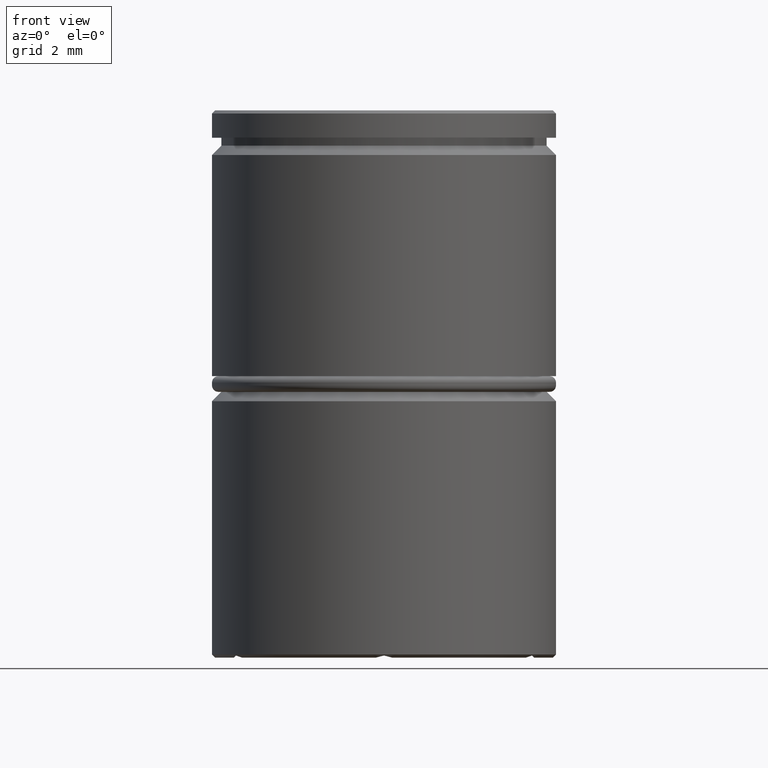
[diagram: clean part render]
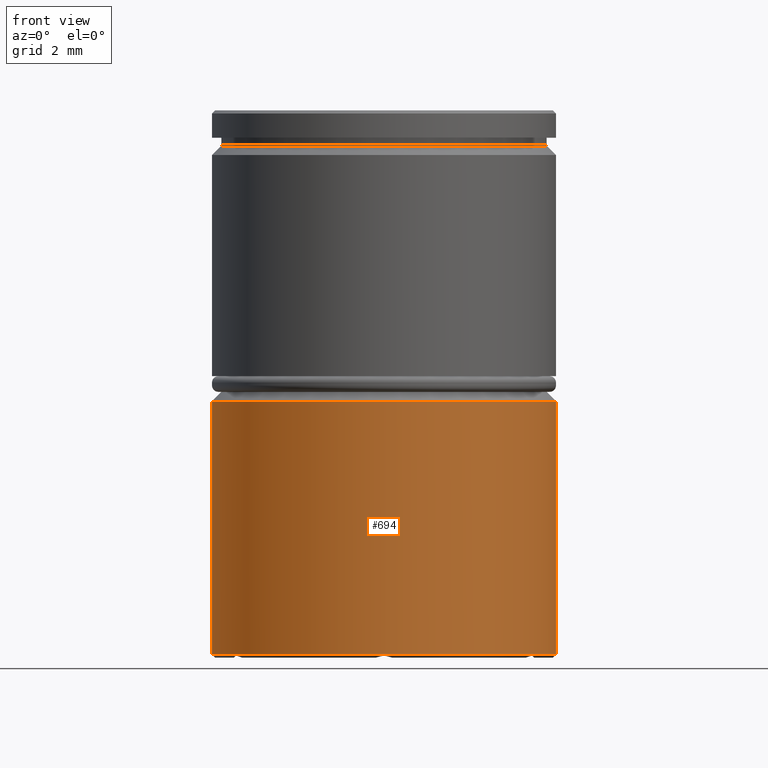
[diagram: same view with one face highlighted and labeled with its STEP entity id]
A machine part, front view. The second image highlights one B-rep face of the part: STEP entity #694.
In plain terms, the highlighted cylindrical surface (partial cylindrical patch) has radius 5.5 mm, axis along (-0, -0, 1).
Its self-contained STEP definition (entity closure, byte-faithful):
#65 = FACE_OUTER_BOUND ( 'NONE', #615, .T. ) ;
#75 = DIRECTION ( 'NONE',  ( 1.000000000000000000, 0.000000000000000000, 0.000000000000000000 ) ) ;
#216 = EDGE_CURVE ( 'NONE', #236, #891, #1212, .T. ) ;
#236 = VERTEX_POINT ( 'NONE', #1220 ) ;
#260 = CARTESIAN_POINT ( 'NONE',  ( -5.500000000000000000, 6.735557395310442023E-16, 0.000000000000000000 ) ) ;
#262 = CARTESIAN_POINT ( 'NONE',  ( -5.500000000000000000, 6.735557395310442023E-16, -9.299999999999998934 ) ) ;
#280 = VECTOR ( 'NONE', #1261, 1000.000000000000000 ) ;
#288 = CYLINDRICAL_SURFACE ( 'NONE', #418, 5.500000000000000000 ) ;
#298 = VECTOR ( 'NONE', #688, 1000.000000000000000 ) ;
#305 = CIRCLE ( 'NONE', #794, 5.500000000000000000 ) ;
#312 = DIRECTION ( 'NONE',  ( -1.000000000000000000, 0.000000000000000000, 0.000000000000000000 ) ) ;
#418 = AXIS2_PLACEMENT_3D ( 'NONE', #499, #604, #712 ) ;
#451 = CARTESIAN_POINT ( 'NONE',  ( 5.500000000000000000, 0.000000000000000000, 0.000000000000000000 ) ) ;
#499 = CARTESIAN_POINT ( 'NONE',  ( 0.000000000000000000, 0.000000000000000000, 0.000000000000000000 ) ) ;
#542 = CARTESIAN_POINT ( 'NONE',  ( 0.000000000000000000, 0.000000000000000000, -17.40000000000000568 ) ) ;
#555 = ORIENTED_EDGE ( 'NONE', *, *, #737, .T. ) ;
#604 = DIRECTION ( 'NONE',  ( -0.000000000000000000, -0.000000000000000000, 1.000000000000000000 ) ) ;
#615 = EDGE_LOOP ( 'NONE', ( #855, #555, #805, #1008 ) ) ;
#634 = AXIS2_PLACEMENT_3D ( 'NONE', #542, #1274, #312 ) ;
#688 = DIRECTION ( 'NONE',  ( -0.000000000000000000, -0.000000000000000000, 1.000000000000000000 ) ) ;
#694 = ADVANCED_FACE ( 'NONE', ( #65 ), #288, .T. ) ;
#712 = DIRECTION ( 'NONE',  ( 1.000000000000000000, 0.000000000000000000, 0.000000000000000000 ) ) ;
#737 = EDGE_CURVE ( 'NONE', #236, #1073, #1232, .T. ) ;
#753 = CARTESIAN_POINT ( 'NONE',  ( 5.500000000000000000, 0.000000000000000000, -17.40000000000000568 ) ) ;
#794 = AXIS2_PLACEMENT_3D ( 'NONE', #812, #930, #75 ) ;
#805 = ORIENTED_EDGE ( 'NONE', *, *, #1098, .T. ) ;
#812 = CARTESIAN_POINT ( 'NONE',  ( 0.000000000000000000, 0.000000000000000000, -9.299999999999998934 ) ) ;
#855 = ORIENTED_EDGE ( 'NONE', *, *, #216, .F. ) ;
#891 = VERTEX_POINT ( 'NONE', #262 ) ;
#914 = VERTEX_POINT ( 'NONE', #1095 ) ;
#930 = DIRECTION ( 'NONE',  ( 0.000000000000000000, 0.000000000000000000, -1.000000000000000000 ) ) ;
#957 = LINE ( 'NONE', #451, #280 ) ;
#1008 = ORIENTED_EDGE ( 'NONE', *, *, #1289, .T. ) ;
#1073 = VERTEX_POINT ( 'NONE', #753 ) ;
#1095 = CARTESIAN_POINT ( 'NONE',  ( 5.500000000000000000, 0.000000000000000000, -9.299999999999998934 ) ) ;
#1098 = EDGE_CURVE ( 'NONE', #1073, #914, #957, .T. ) ;
#1212 = LINE ( 'NONE', #260, #298 ) ;
#1220 = CARTESIAN_POINT ( 'NONE',  ( -5.500000000000000000, 6.735557395310442023E-16, -17.40000000000000568 ) ) ;
#1232 = CIRCLE ( 'NONE', #634, 5.500000000000000000 ) ;
#1261 = DIRECTION ( 'NONE',  ( -0.000000000000000000, -0.000000000000000000, 1.000000000000000000 ) ) ;
#1274 = DIRECTION ( 'NONE',  ( -0.000000000000000000, -0.000000000000000000, 1.000000000000000000 ) ) ;
#1289 = EDGE_CURVE ( 'NONE', #914, #891, #305, .T. ) ;